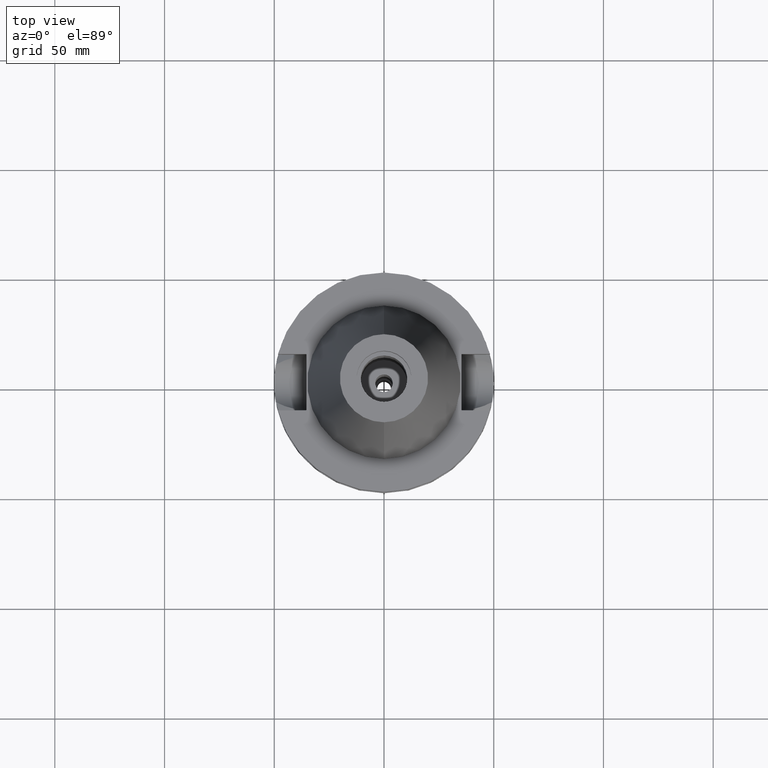
[diagram: clean part render]
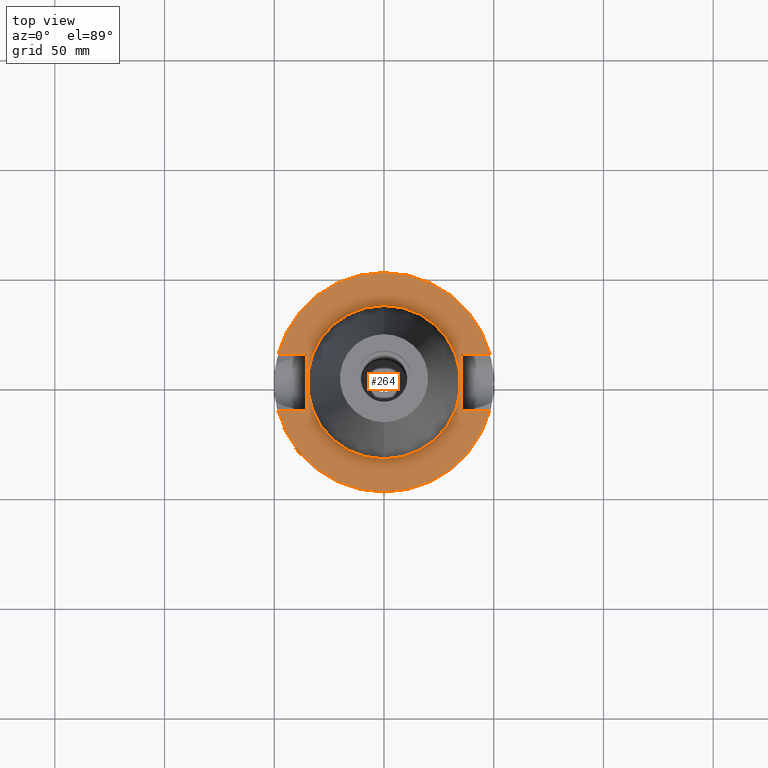
[diagram: same view with one face highlighted and labeled with its STEP entity id]
A machine part, top view. The second image highlights one B-rep face of the part: STEP entity #264.
In plain terms, the highlighted planar face has unit normal (0, 0, -1).
Its self-contained STEP definition (entity closure, byte-faithful):
#24 = PLANE ( 'NONE',  #159 ) ;
#54 = ORIENTED_EDGE ( 'NONE', *, *, #2799, .T. ) ;
#74 = CARTESIAN_POINT ( 'NONE',  ( 35.39999999999999858, 12.84999999999999964, -3.000000000000000000 ) ) ;
#98 = AXIS2_PLACEMENT_3D ( 'NONE', #1036, #1922, #1055 ) ;
#106 = VECTOR ( 'NONE', #1541, 1000.000000000000000 ) ;
#159 = AXIS2_PLACEMENT_3D ( 'NONE', #897, #1203, #3125 ) ;
#199 = CARTESIAN_POINT ( 'NONE',  ( 0.0000000000000000000, 2.653074825673000053E-14, -3.000000000000000000 ) ) ;
#201 = CARTESIAN_POINT ( 'NONE',  ( -35.39999999999999858, -12.84999999999999964, -3.000000000000000000 ) ) ;
#237 = VECTOR ( 'NONE', #3674, 1000.000000000000000 ) ;
#264 = ADVANCED_FACE ( 'NONE', ( #2597, #1793 ), #24, .F. ) ;
#294 = CARTESIAN_POINT ( 'NONE',  ( -48.32057015392000210, -12.84999999999999964, -3.000000000000000000 ) ) ;
#357 = CARTESIAN_POINT ( 'NONE',  ( 35.39999999999999858, 12.84999999999999964, -3.000000000000000000 ) ) ;
#483 = DIRECTION ( 'NONE',  ( 0.0000000000000000000, -1.000000000000000000, 0.0000000000000000000 ) ) ;
#494 = CARTESIAN_POINT ( 'NONE',  ( -35.39999999999999858, -12.84999999999999964, -3.000000000000000000 ) ) ;
#508 = DIRECTION ( 'NONE',  ( 0.0000000000000000000, 1.000000000000000000, 0.0000000000000000000 ) ) ;
#525 = CARTESIAN_POINT ( 'NONE',  ( 0.0000000000000000000, 2.653074825673000053E-14, -3.000000000000000000 ) ) ;
#531 = VERTEX_POINT ( 'NONE', #1607 ) ;
#566 = DIRECTION ( 'NONE',  ( 0.0000000000000000000, 1.000000000000000000, 0.0000000000000000000 ) ) ;
#648 = LINE ( 'NONE', #357, #1415 ) ;
#689 = CARTESIAN_POINT ( 'NONE',  ( 35.39999999999999858, -12.84999999999999964, -3.000000000000000000 ) ) ;
#708 = CARTESIAN_POINT ( 'NONE',  ( -35.39999999999999858, 12.84999999999999964, -3.000000000000000000 ) ) ;
#724 = ORIENTED_EDGE ( 'NONE', *, *, #1890, .F. ) ;
#818 = VERTEX_POINT ( 'NONE', #294 ) ;
#897 = CARTESIAN_POINT ( 'NONE',  ( 0.0000000000000000000, 1.187907395172999884E-14, -3.000000000000000000 ) ) ;
#966 = DIRECTION ( 'NONE',  ( 1.000000000000000000, 0.0000000000000000000, 0.0000000000000000000 ) ) ;
#974 = LINE ( 'NONE', #689, #106 ) ;
#1036 = CARTESIAN_POINT ( 'NONE',  ( 0.0000000000000000000, 2.653074825673000053E-14, -3.000000000000000000 ) ) ;
#1054 = DIRECTION ( 'NONE',  ( 0.0000000000000000000, 1.000000000000000000, 0.0000000000000000000 ) ) ;
#1055 = DIRECTION ( 'NONE',  ( 0.0000000000000000000, -1.000000000000000000, 0.0000000000000000000 ) ) ;
#1081 = ORIENTED_EDGE ( 'NONE', *, *, #1982, .T. ) ;
#1136 = VERTEX_POINT ( 'NONE', #2403 ) ;
#1203 = DIRECTION ( 'NONE',  ( 0.0000000000000000000, 0.0000000000000000000, -1.000000000000000000 ) ) ;
#1258 = ORIENTED_EDGE ( 'NONE', *, *, #2851, .F. ) ;
#1278 = EDGE_CURVE ( 'NONE', #1716, #531, #2537, .T. ) ;
#1311 = EDGE_LOOP ( 'NONE', ( #2587, #1976 ) ) ;
#1412 = EDGE_CURVE ( 'NONE', #2921, #1136, #3382, .T. ) ;
#1415 = VECTOR ( 'NONE', #966, 1000.000000000000000 ) ;
#1455 = VERTEX_POINT ( 'NONE', #74 ) ;
#1510 = EDGE_CURVE ( 'NONE', #1740, #1572, #974, .T. ) ;
#1533 = VECTOR ( 'NONE', #3480, 1000.000000000000000 ) ;
#1541 = DIRECTION ( 'NONE',  ( 1.000000000000000000, 0.0000000000000000000, 0.0000000000000000000 ) ) ;
#1554 = CARTESIAN_POINT ( 'NONE',  ( -35.39999999999999858, -12.84999999999999964, -3.000000000000000000 ) ) ;
#1572 = VERTEX_POINT ( 'NONE', #2459 ) ;
#1607 = CARTESIAN_POINT ( 'NONE',  ( -35.39999999999999858, 12.84999999999999964, -3.000000000000000000 ) ) ;
#1612 = CARTESIAN_POINT ( 'NONE',  ( -48.32057015392000210, 12.84999999999999964, -3.000000000000000000 ) ) ;
#1648 = AXIS2_PLACEMENT_3D ( 'NONE', #199, #1879, #483 ) ;
#1716 = VERTEX_POINT ( 'NONE', #1554 ) ;
#1740 = VERTEX_POINT ( 'NONE', #2995 ) ;
#1745 = CARTESIAN_POINT ( 'NONE',  ( 0.0000000000000000000, 2.653074825673000053E-14, -3.000000000000000000 ) ) ;
#1772 = AXIS2_PLACEMENT_3D ( 'NONE', #525, #1927, #508 ) ;
#1793 = FACE_BOUND ( 'NONE', #1311, .T. ) ;
#1879 = DIRECTION ( 'NONE',  ( 0.0000000000000000000, 0.0000000000000000000, 1.000000000000000000 ) ) ;
#1890 = EDGE_CURVE ( 'NONE', #1455, #1740, #3338, .T. ) ;
#1922 = DIRECTION ( 'NONE',  ( 0.0000000000000000000, 0.0000000000000000000, -1.000000000000000000 ) ) ;
#1927 = DIRECTION ( 'NONE',  ( 0.0000000000000000000, 0.0000000000000000000, 1.000000000000000000 ) ) ;
#1958 = CIRCLE ( 'NONE', #98, 50.00000000000000000 ) ;
#1976 = ORIENTED_EDGE ( 'NONE', *, *, #2487, .F. ) ;
#1982 = EDGE_CURVE ( 'NONE', #1716, #818, #3396, .T. ) ;
#2082 = CARTESIAN_POINT ( 'NONE',  ( 0.0000000000000000000, -34.92499999999999716, -3.000000000000000000 ) ) ;
#2384 = VERTEX_POINT ( 'NONE', #2082 ) ;
#2403 = CARTESIAN_POINT ( 'NONE',  ( 48.32057015392000210, 12.84999999999999964, -3.000000000000000000 ) ) ;
#2459 = CARTESIAN_POINT ( 'NONE',  ( 48.32057015392000210, -12.84999999999999964, -3.000000000000000000 ) ) ;
#2487 = EDGE_CURVE ( 'NONE', #2384, #3283, #3127, .T. ) ;
#2515 = DIRECTION ( 'NONE',  ( -1.000000000000000000, 0.0000000000000000000, 0.0000000000000000000 ) ) ;
#2537 = LINE ( 'NONE', #201, #2901 ) ;
#2587 = ORIENTED_EDGE ( 'NONE', *, *, #3102, .F. ) ;
#2588 = DIRECTION ( 'NONE',  ( 0.0000000000000000000, 0.0000000000000000000, -1.000000000000000000 ) ) ;
#2597 = FACE_OUTER_BOUND ( 'NONE', #3490, .T. ) ;
#2651 = ORIENTED_EDGE ( 'NONE', *, *, #1510, .F. ) ;
#2670 = LINE ( 'NONE', #708, #1533 ) ;
#2711 = ORIENTED_EDGE ( 'NONE', *, *, #3462, .F. ) ;
#2775 = ORIENTED_EDGE ( 'NONE', *, *, #1278, .F. ) ;
#2799 = EDGE_CURVE ( 'NONE', #1455, #1136, #648, .T. ) ;
#2851 = EDGE_CURVE ( 'NONE', #531, #2921, #2670, .T. ) ;
#2901 = VECTOR ( 'NONE', #1054, 1000.000000000000000 ) ;
#2921 = VERTEX_POINT ( 'NONE', #1612 ) ;
#2967 = VECTOR ( 'NONE', #2515, 1000.000000000000000 ) ;
#2995 = CARTESIAN_POINT ( 'NONE',  ( 35.39999999999999858, -12.84999999999999964, -3.000000000000000000 ) ) ;
#3045 = ORIENTED_EDGE ( 'NONE', *, *, #1412, .F. ) ;
#3102 = EDGE_CURVE ( 'NONE', #3283, #2384, #3249, .T. ) ;
#3125 = DIRECTION ( 'NONE',  ( 0.0000000000000000000, -1.000000000000000000, 0.0000000000000000000 ) ) ;
#3127 = CIRCLE ( 'NONE', #1648, 34.92499999999999716 ) ;
#3249 = CIRCLE ( 'NONE', #1772, 34.92499999999999716 ) ;
#3283 = VERTEX_POINT ( 'NONE', #3461 ) ;
#3338 = LINE ( 'NONE', #3641, #237 ) ;
#3382 = CIRCLE ( 'NONE', #3440, 50.00000000000000000 ) ;
#3396 = LINE ( 'NONE', #494, #2967 ) ;
#3440 = AXIS2_PLACEMENT_3D ( 'NONE', #1745, #2588, #566 ) ;
#3461 = CARTESIAN_POINT ( 'NONE',  ( 0.0000000000000000000, 34.92499999999999716, -3.000000000000000000 ) ) ;
#3462 = EDGE_CURVE ( 'NONE', #1572, #818, #1958, .T. ) ;
#3480 = DIRECTION ( 'NONE',  ( -1.000000000000000000, 0.0000000000000000000, 0.0000000000000000000 ) ) ;
#3490 = EDGE_LOOP ( 'NONE', ( #1081, #2711, #2651, #724, #54, #3045, #1258, #2775 ) ) ;
#3641 = CARTESIAN_POINT ( 'NONE',  ( 35.39999999999999858, 12.84999999999999964, -3.000000000000000000 ) ) ;
#3674 = DIRECTION ( 'NONE',  ( 0.0000000000000000000, -1.000000000000000000, 0.0000000000000000000 ) ) ;